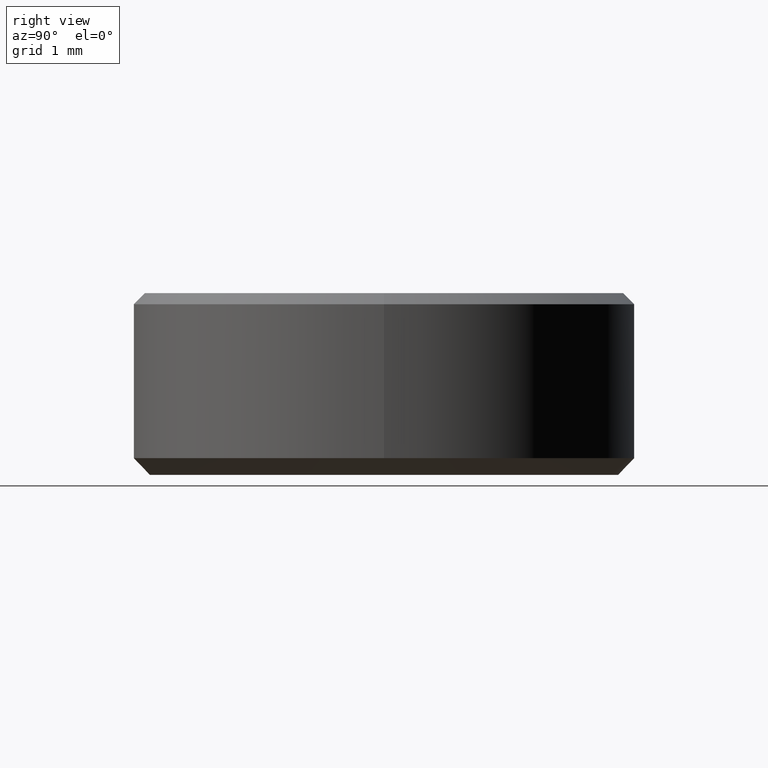
[diagram: clean part render]
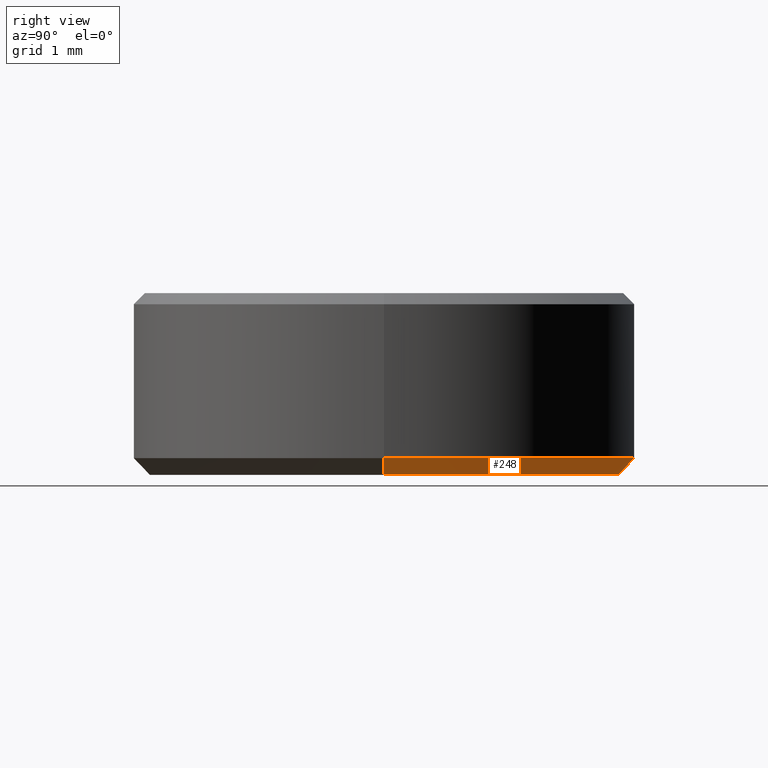
[diagram: same view with one face highlighted and labeled with its STEP entity id]
A machine part, right view. The second image highlights one B-rep face of the part: STEP entity #248.
In plain terms, the highlighted conical surface has half-angle 45 deg.
Its self-contained STEP definition (entity closure, byte-faithful):
#4 = ORIENTED_EDGE ( 'NONE', *, *, #187, .T. ) ;
#14 = DIRECTION ( 'NONE',  ( -0.7071067811865474617, 8.659560562354932858E-17, 0.7071067811865474617 ) ) ;
#20 = VECTOR ( 'NONE', #14, 1000.000000000000114 ) ;
#21 = AXIS2_PLACEMENT_3D ( 'NONE', #46, #164, #128 ) ;
#32 = CIRCLE ( 'NONE', #21, 3.000000000000000000 ) ;
#38 = DIRECTION ( 'NONE',  ( 1.000000000000000000, 0.000000000000000000, 0.000000000000000000 ) ) ;
#43 = CARTESIAN_POINT ( 'NONE',  ( 3.000000000000000000, 0.000000000000000000, 0.2000000000000020373 ) ) ;
#46 = CARTESIAN_POINT ( 'NONE',  ( 0.000000000000000000, 0.000000000000000000, 0.2000000000000020373 ) ) ;
#47 = ORIENTED_EDGE ( 'NONE', *, *, #126, .F. ) ;
#48 = CARTESIAN_POINT ( 'NONE',  ( -2.799999999999998046, 3.551475717527323339E-16, 1.836970198721029934E-16 ) ) ;
#57 = CARTESIAN_POINT ( 'NONE',  ( 0.000000000000000000, 0.000000000000000000, 1.836970198721029934E-16 ) ) ;
#78 = ORIENTED_EDGE ( 'NONE', *, *, #122, .F. ) ;
#89 = EDGE_LOOP ( 'NONE', ( #78, #4, #208, #47 ) ) ;
#97 = CARTESIAN_POINT ( 'NONE',  ( 3.000000000000000000, 0.000000000000000000, 0.2000000000000020373 ) ) ;
#119 = CONICAL_SURFACE ( 'NONE', #194, 3.000000000000000000, 0.7853981633974482790 ) ;
#122 = EDGE_CURVE ( 'NONE', #255, #226, #239, .T. ) ;
#126 = EDGE_CURVE ( 'NONE', #226, #158, #264, .T. ) ;
#128 = DIRECTION ( 'NONE',  ( 1.000000000000000000, 0.000000000000000000, 0.000000000000000000 ) ) ;
#130 = VERTEX_POINT ( 'NONE', #138 ) ;
#138 = CARTESIAN_POINT ( 'NONE',  ( -3.000000000000000000, 3.673940397442059868E-16, 0.2000000000000020373 ) ) ;
#150 = FACE_OUTER_BOUND ( 'NONE', #89, .T. ) ;
#158 = VERTEX_POINT ( 'NONE', #43 ) ;
#159 = DIRECTION ( 'NONE',  ( 0.000000000000000000, 0.000000000000000000, -1.000000000000000000 ) ) ;
#162 = DIRECTION ( 'NONE',  ( 0.7071067811865474617, 0.000000000000000000, 0.7071067811865474617 ) ) ;
#164 = DIRECTION ( 'NONE',  ( -0.000000000000000000, -0.000000000000000000, 1.000000000000000000 ) ) ;
#184 = VECTOR ( 'NONE', #162, 1000.000000000000114 ) ;
#187 = EDGE_CURVE ( 'NONE', #255, #130, #200, .T. ) ;
#194 = AXIS2_PLACEMENT_3D ( 'NONE', #222, #207, #265 ) ;
#198 = CARTESIAN_POINT ( 'NONE',  ( -3.000000000000000000, 3.673940397442059868E-16, 0.2000000000000020373 ) ) ;
#200 = LINE ( 'NONE', #198, #20 ) ;
#202 = AXIS2_PLACEMENT_3D ( 'NONE', #57, #159, #38 ) ;
#207 = DIRECTION ( 'NONE',  ( -0.000000000000000000, -0.000000000000000000, 1.000000000000000000 ) ) ;
#208 = ORIENTED_EDGE ( 'NONE', *, *, #224, .F. ) ;
#222 = CARTESIAN_POINT ( 'NONE',  ( 0.000000000000000000, 0.000000000000000000, 0.2000000000000020373 ) ) ;
#224 = EDGE_CURVE ( 'NONE', #158, #130, #32, .T. ) ;
#226 = VERTEX_POINT ( 'NONE', #266 ) ;
#239 = CIRCLE ( 'NONE', #202, 2.799999999999998046 ) ;
#248 = ADVANCED_FACE ( 'NONE', ( #150 ), #119, .T. ) ;
#255 = VERTEX_POINT ( 'NONE', #48 ) ;
#264 = LINE ( 'NONE', #97, #184 ) ;
#265 = DIRECTION ( 'NONE',  ( 1.000000000000000000, 0.000000000000000000, 0.000000000000000000 ) ) ;
#266 = CARTESIAN_POINT ( 'NONE',  ( 2.799999999999998046, 0.000000000000000000, 1.836970198721029934E-16 ) ) ;